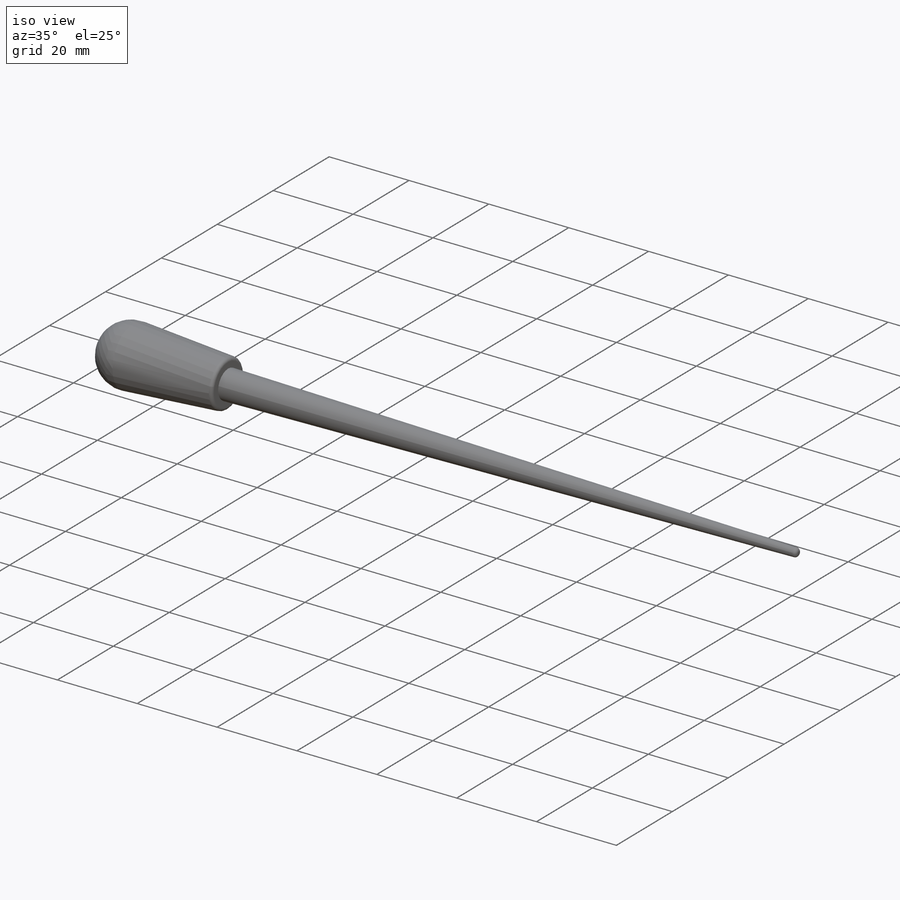
[diagram: iso view]
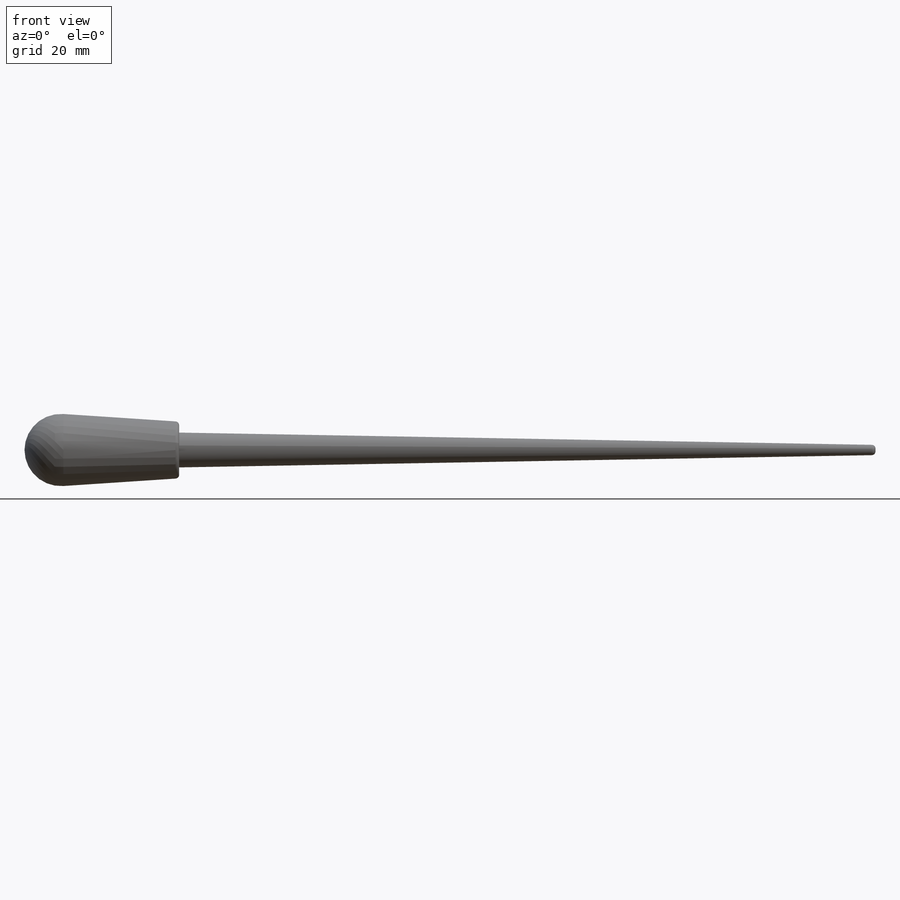
[diagram: front view]
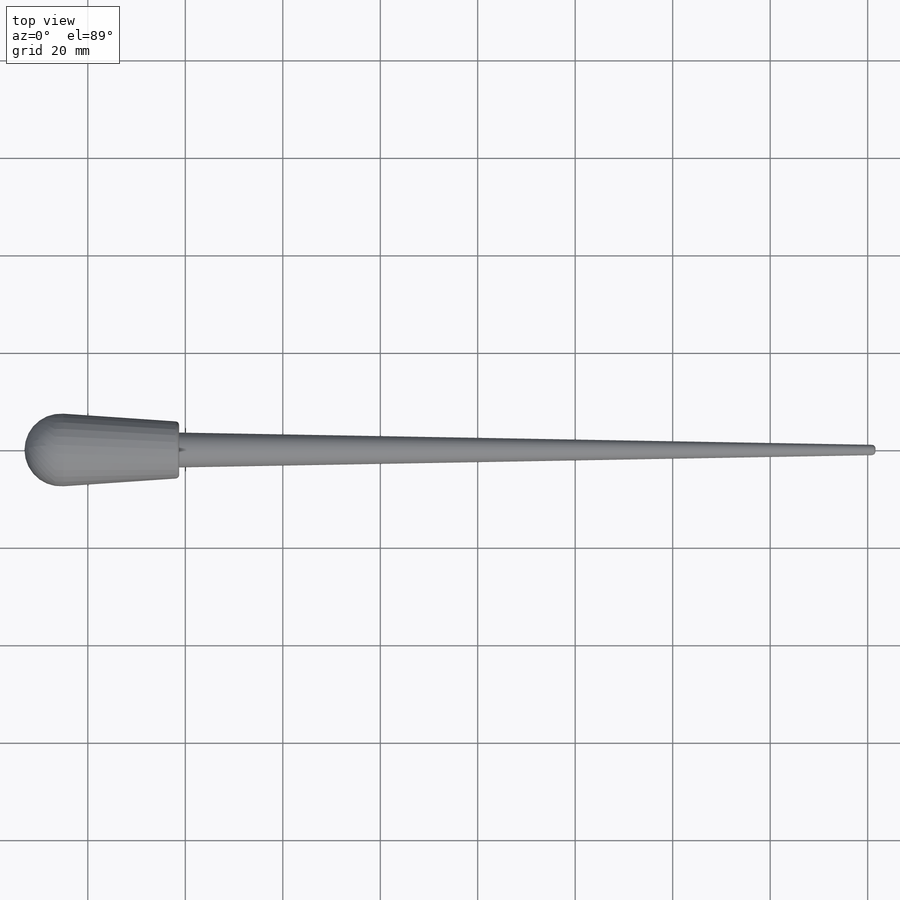
[diagram: top view]
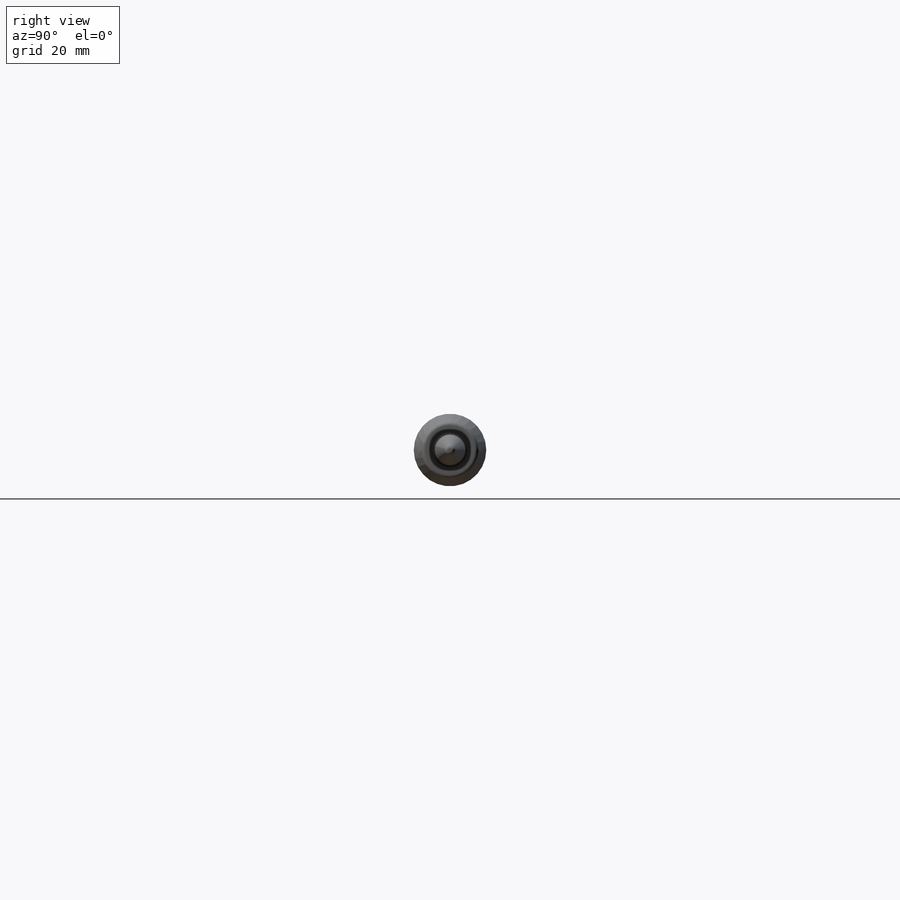
[diagram: right view]
SOLIDWORKS PART (.sldprt)
format: sldprt  version: not decoded by parser v0  size: 203,776 bytes
history: native  units: mm
features: sketch x3, fillet x2, cut_revolve x2, material x1, revolve x1, extrude x1 (+13 scaffold rows collapsed)
feature tree (23):
  scaffold x13  (default folders/planes/origin — collapsed)
  material  "Material <not specified>"
  sketch  "Sketch7"  dims[D1=~10.677901mm D2=190.5mm]
  revolve  "Revolve4"  Angle=360deg
  fillet  "Fillet1"  Radius=6.35mm
  sketch  "Sketch11"  dims[D1=57.15mm]
  extrude  "Boss-Extrude2"  Depth=1143mm
  sketch  "Sketch12"  dims[D1=1143.0mm]
  cut_revolve  "Cut-Revolve1"  Angle=360deg
  fillet  "Fillet2"  Radius=6.35mm
  cut_revolve  "Scale2"  [1 undecoded]
decode coverage: 8 of 9 modeling features carry decoded parameters
note: ~ marks probable driven/reference dimensions
note: 1 parameter value undecoded
note: suppression state not decoded; provenance and decode notes live in map.json
